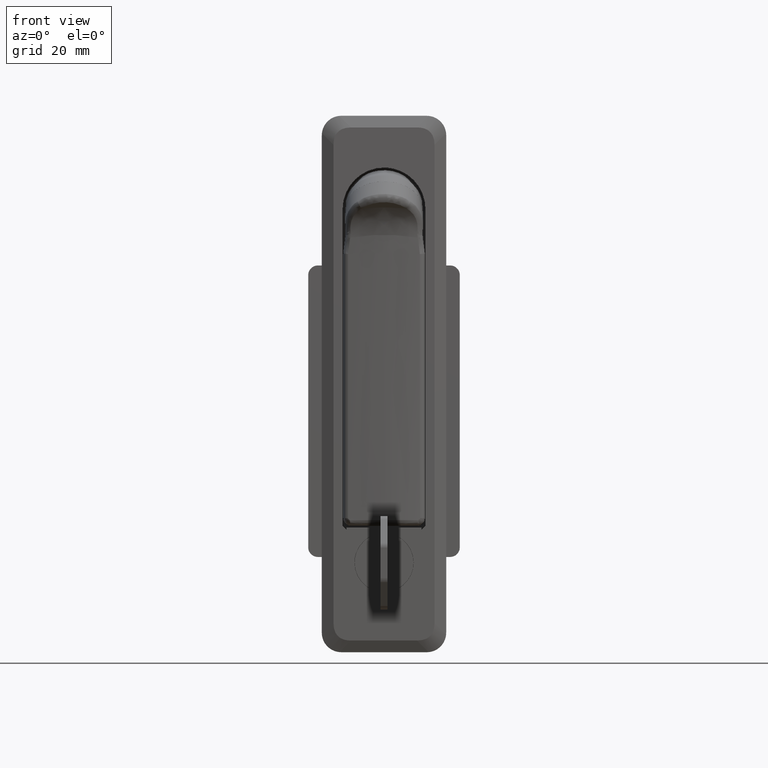
[diagram: clean part render]
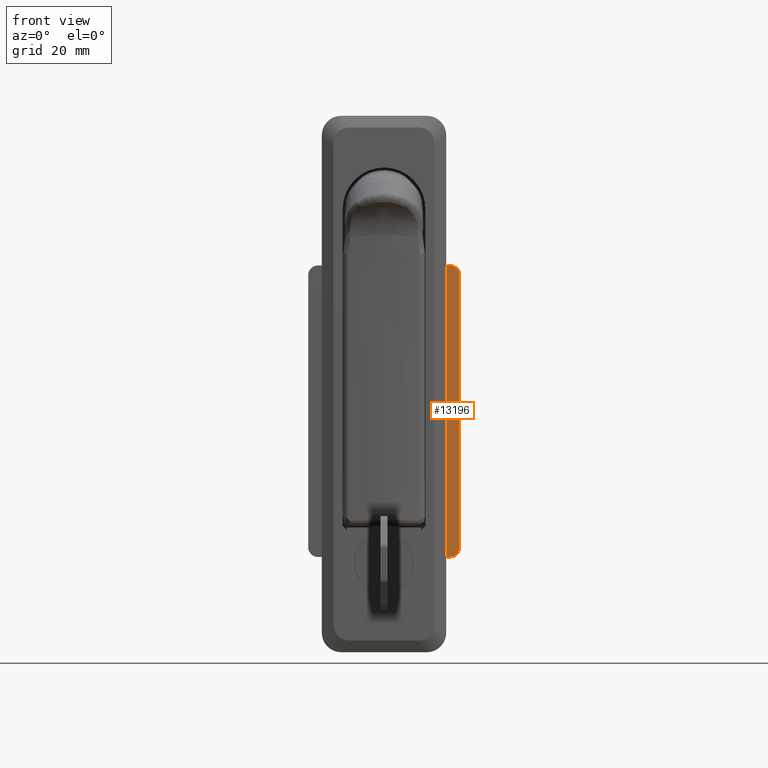
[diagram: same view with one face highlighted and labeled with its STEP entity id]
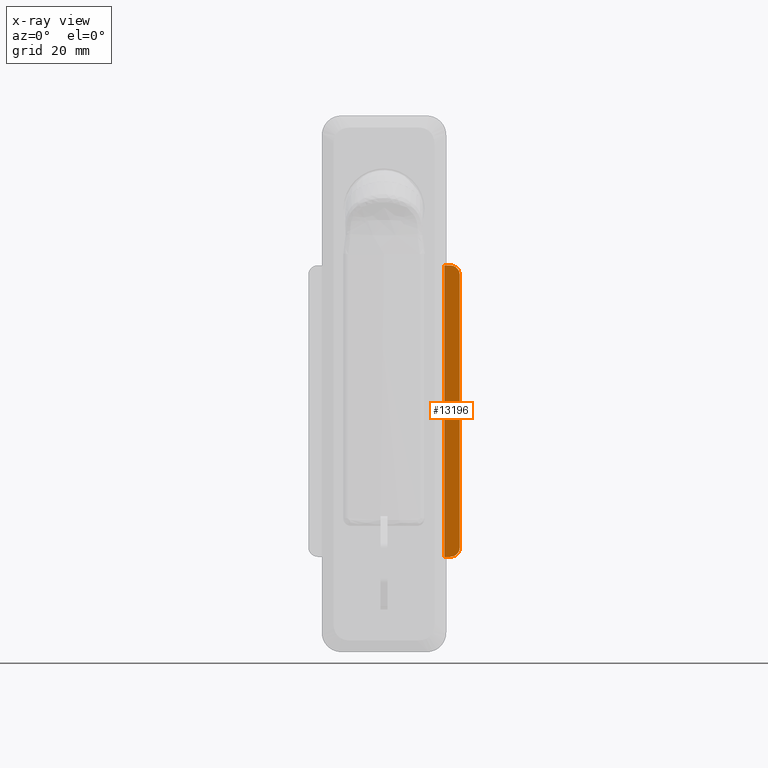
[diagram: x-ray of the same camera — body ghosted, the highlighted face saturated]
A machine part, front view. The second image highlights one B-rep face of the part: STEP entity #13196.
The next image is the same camera in x-ray: the body ghosted, the highlighted face saturated — about 0% of this face is hidden behind the body in this view.
In plain terms, the highlighted face is a freeform B-spline surface patch.
Its self-contained STEP definition (entity closure, byte-faithful):
#12600=CARTESIAN_POINT('',(4.299999999999955,-17.0,-89.500000000000000));
#12601=VERTEX_POINT('',#12600);
#12602=CARTESIAN_POINT('',(4.300000000000000,-19.500000000000000,-87.0));
#12603=VERTEX_POINT('',#12602);
#12604=CARTESIAN_POINT('',(4.299999999999955,-17.0,-89.500000000000000));
#12605=CARTESIAN_POINT('',(4.299999999999951,-17.245432386291089,-89.500079405025232));
#12606=CARTESIAN_POINT('',(4.299999999999953,-17.777245870839540,-89.421169550993056));
#12607=CARTESIAN_POINT('',(4.299999999999947,-18.426097980222739,-89.094589375796502));
#12608=CARTESIAN_POINT('',(4.299999999999947,-18.908475313671229,-88.646253326975071));
#12609=CARTESIAN_POINT('',(4.300000000000006,-19.211154403531030,-88.205094190216997));
#12610=CARTESIAN_POINT('',(4.299999999999923,-19.439245054992139,-87.654441357814335));
#12611=CARTESIAN_POINT('',(4.300000000000032,-19.500115368005272,-87.245450530849723));
#12612=CARTESIAN_POINT('',(4.300000000000000,-19.500000000000000,-87.0));
#12613=B_SPLINE_CURVE_WITH_KNOTS('',3,(#12604,#12605,#12606,#12607,#12608,#12609,#12610,#12611,#12612),.UNSPECIFIED.,.F.,.U.,(4,1,1,1,1,1,4),(0.000000307283417,0.736327136476470,1.595421393529847,2.147583914373048,2.699871663266216,3.190762531669573,3.927089360864126),.UNSPECIFIED.);
#12614=EDGE_CURVE('',#12601,#12603,#12613,.T.);
#12773=CARTESIAN_POINT('',(4.300000000000000,-19.500000000000000,-17.0));
#12774=VERTEX_POINT('',#12773);
#12775=CARTESIAN_POINT('',(4.299999999999955,-17.0,-14.500000000000000));
#12776=VERTEX_POINT('',#12775);
#12777=CARTESIAN_POINT('',(4.300000000000000,-19.500000000000000,-17.0));
#12778=CARTESIAN_POINT('',(4.299999999999993,-19.500060828978999,-16.754566747143400));
#12779=CARTESIAN_POINT('',(4.299999999999974,-19.421194088731799,-16.222767295699860));
#12780=CARTESIAN_POINT('',(4.299999999999967,-19.066593814667069,-15.518242252432550));
#12781=CARTESIAN_POINT('',(4.299999999999944,-18.569400437137421,-15.021270784302390));
#12782=CARTESIAN_POINT('',(4.299999999999939,-17.899525209959268,-14.619704814816149));
#12783=CARTESIAN_POINT('',(4.299999999999947,-17.368297323549420,-14.499380650911050));
#12784=CARTESIAN_POINT('',(4.299999999999955,-17.0,-14.500000000000000));
#12785=B_SPLINE_CURVE_WITH_KNOTS('',3,(#12777,#12778,#12779,#12780,#12781,#12782,#12783,#12784),.UNSPECIFIED.,.F.,.U.,(4,1,1,1,1,4),(0.000000307279030,0.736327136473878,1.595421393529081,2.331668274614180,2.822586945455866,3.927089360864150),.UNSPECIFIED.);
#12786=EDGE_CURVE('',#12774,#12776,#12785,.T.);
#12868=CARTESIAN_POINT('',(4.299999999999955,-15.500000000000000,-14.500000000000000));
#12869=VERTEX_POINT('',#12868);
#12870=CARTESIAN_POINT('',(4.299999999999955,-15.500000000000000,-14.500000000000000));
#12871=CARTESIAN_POINT('',(4.299999999999955,-17.0,-14.500000000000000));
#12872=QUASI_UNIFORM_CURVE('',1,(#12870,#12871),.UNSPECIFIED.,.F.,.U.);
#12873=EDGE_CURVE('',#12869,#12776,#12872,.T.);
#13164=CARTESIAN_POINT('',(4.300000000000000,-19.500000000000000,-87.0));
#13165=CARTESIAN_POINT('',(4.300000000000000,-19.500000000000000,-17.0));
#13166=QUASI_UNIFORM_CURVE('',1,(#13164,#13165),.UNSPECIFIED.,.F.,.U.);
#13167=EDGE_CURVE('',#12603,#12774,#13166,.T.);
#13173=CARTESIAN_POINT('',(4.299999999999955,-15.300200007752769,-93.246249854635465));
#13174=CARTESIAN_POINT('',(4.299999999999955,-19.699800099535580,-93.246249854635465));
#13175=CARTESIAN_POINT('',(4.299999999999955,-15.300200007752769,-10.753748133707790));
#13176=CARTESIAN_POINT('',(4.299999999999955,-19.699800099535580,-10.753748133707790));
#13177=B_SPLINE_SURFACE_WITH_KNOTS('',1,1,((#13173,#13175),(#13174,#13176)),.UNSPECIFIED.,.F.,.F.,.U.,(2,2),(2,2),(0.0,4.399600091782810),(0.0,82.492501720927677),.UNSPECIFIED.);
#13178=ORIENTED_EDGE('',*,*,#13167,.T.);
#13179=ORIENTED_EDGE('',*,*,#12786,.T.);
#13180=ORIENTED_EDGE('',*,*,#12873,.F.);
#13181=CARTESIAN_POINT('',(4.299999999999955,-15.500000000000000,-89.500000000000000));
#13182=VERTEX_POINT('',#13181);
#13183=CARTESIAN_POINT('',(4.299999999999955,-15.500000000000000,-89.500000000000000));
#13184=CARTESIAN_POINT('',(4.299999999999955,-15.500000000000000,-14.500000000000000));
#13185=QUASI_UNIFORM_CURVE('',1,(#13183,#13184),.UNSPECIFIED.,.F.,.U.);
#13186=EDGE_CURVE('',#13182,#12869,#13185,.T.);
#13187=ORIENTED_EDGE('',*,*,#13186,.F.);
#13188=CARTESIAN_POINT('',(4.299999999999955,-15.500000000000000,-89.500000000000000));
#13189=CARTESIAN_POINT('',(4.299999999999955,-17.0,-89.500000000000000));
#13190=QUASI_UNIFORM_CURVE('',1,(#13188,#13189),.UNSPECIFIED.,.F.,.U.);
#13191=EDGE_CURVE('',#13182,#12601,#13190,.T.);
#13192=ORIENTED_EDGE('',*,*,#13191,.T.);
#13193=ORIENTED_EDGE('',*,*,#12614,.T.);
#13194=EDGE_LOOP('',(#13178,#13179,#13180,#13187,#13192,#13193));
#13195=FACE_OUTER_BOUND('',#13194,.T.);
#13196=ADVANCED_FACE('',(#13195),#13177,.T.);